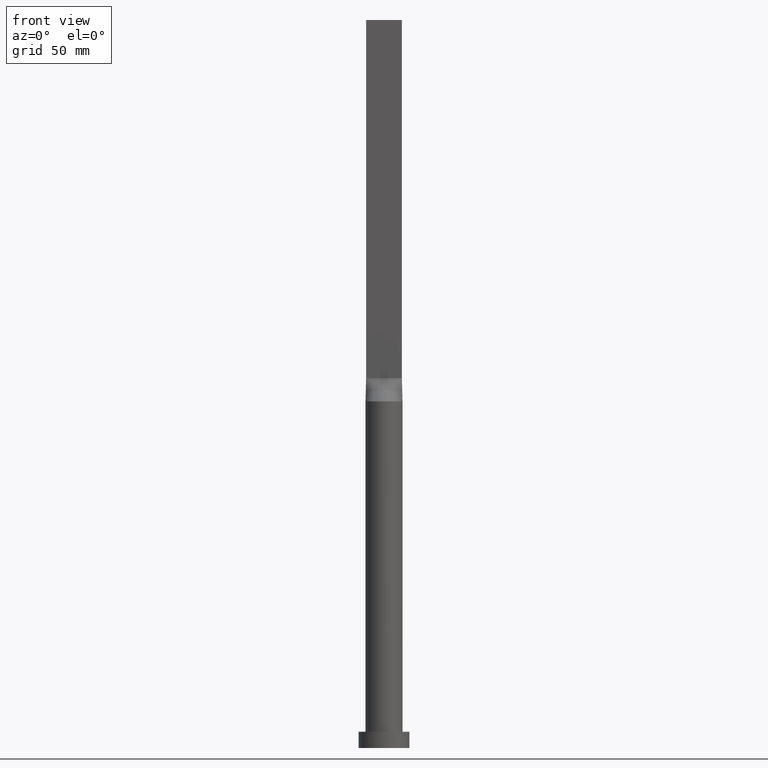
[diagram: clean part render]
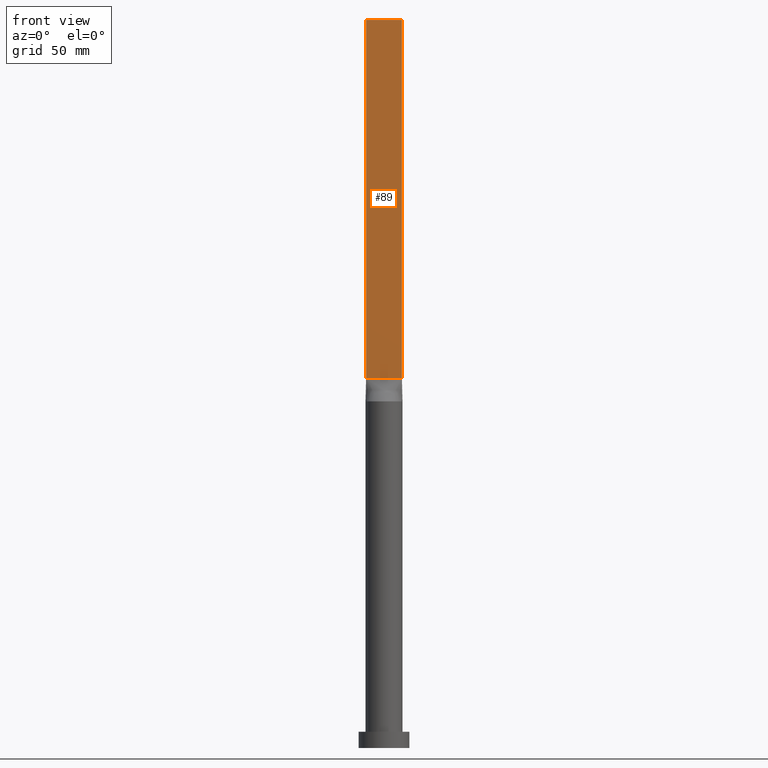
[diagram: same view with one face highlighted and labeled with its STEP entity id]
A machine part, front view. The second image highlights one B-rep face of the part: STEP entity #89.
In plain terms, the highlighted planar face has unit normal (0, 1, -0).
Its self-contained STEP definition (entity closure, byte-faithful):
#1 = EDGE_CURVE ( 'NONE', #638, #161, #126, .T. ) ;
#13 = EDGE_CURVE ( 'NONE', #48, #161, #282, .T. ) ;
#15 = VECTOR ( 'NONE', #130, 1000.000000000000000 ) ;
#22 = ORIENTED_EDGE ( 'NONE', *, *, #1, .T. ) ;
#34 = LINE ( 'NONE', #218, #482 ) ;
#43 = CARTESIAN_POINT ( 'NONE',  ( -7.750000000000000000, -1.249999999999998890, 315.0000000000000000 ) ) ;
#48 = VERTEX_POINT ( 'NONE', #185 ) ;
#59 = VECTOR ( 'NONE', #384, 1000.000000000000000 ) ;
#89 = ADVANCED_FACE ( 'NONE', ( #629 ), #297, .F. ) ;
#126 = LINE ( 'NONE', #495, #449 ) ;
#130 = DIRECTION ( 'NONE',  ( -0.000000000000000000, -0.000000000000000000, -1.000000000000000000 ) ) ;
#161 = VERTEX_POINT ( 'NONE', #438 ) ;
#182 = ORIENTED_EDGE ( 'NONE', *, *, #444, .F. ) ;
#185 = CARTESIAN_POINT ( 'NONE',  ( 7.750000000000000000, -1.249999999999999778, 315.0000000000000000 ) ) ;
#218 = CARTESIAN_POINT ( 'NONE',  ( -7.750000000000000000, -1.249999999999998890, 315.0000000000000000 ) ) ;
#246 = CARTESIAN_POINT ( 'NONE',  ( -7.750000000000000000, -1.249999999999998890, 160.0000000000000000 ) ) ;
#282 = LINE ( 'NONE', #387, #59 ) ;
#297 = PLANE ( 'NONE',  #470 ) ;
#374 = EDGE_LOOP ( 'NONE', ( #22, #618, #182, #380 ) ) ;
#380 = ORIENTED_EDGE ( 'NONE', *, *, #559, .T. ) ;
#384 = DIRECTION ( 'NONE',  ( -0.000000000000000000, -0.000000000000000000, -1.000000000000000000 ) ) ;
#386 = DIRECTION ( 'NONE',  ( 1.000000000000000000, -5.595882180570345426E-17, 0.000000000000000000 ) ) ;
#387 = CARTESIAN_POINT ( 'NONE',  ( 7.750000000000000000, -1.249999999999999778, 315.0000000000000000 ) ) ;
#388 = CARTESIAN_POINT ( 'NONE',  ( -7.750000000000000000, -1.249999999999998890, 315.0000000000000000 ) ) ;
#391 = DIRECTION ( 'NONE',  ( 5.595882180570345426E-17, 1.000000000000000000, -0.000000000000000000 ) ) ;
#400 = CARTESIAN_POINT ( 'NONE',  ( -7.750000000000000000, -1.249999999999998890, 315.0000000000000000 ) ) ;
#438 = CARTESIAN_POINT ( 'NONE',  ( 7.750000000000000000, -1.249999999999999778, 160.0000000000000000 ) ) ;
#444 = EDGE_CURVE ( 'NONE', #529, #48, #34, .T. ) ;
#449 = VECTOR ( 'NONE', #542, 1000.000000000000000 ) ;
#470 = AXIS2_PLACEMENT_3D ( 'NONE', #43, #391, #501 ) ;
#482 = VECTOR ( 'NONE', #386, 1000.000000000000000 ) ;
#495 = CARTESIAN_POINT ( 'NONE',  ( -7.750000000000000000, -1.249999999999998890, 160.0000000000000000 ) ) ;
#501 = DIRECTION ( 'NONE',  ( -1.000000000000000000, 5.595882180570345426E-17, 0.000000000000000000 ) ) ;
#529 = VERTEX_POINT ( 'NONE', #400 ) ;
#542 = DIRECTION ( 'NONE',  ( 1.000000000000000000, -5.595882180570345426E-17, 0.000000000000000000 ) ) ;
#559 = EDGE_CURVE ( 'NONE', #529, #638, #641, .T. ) ;
#618 = ORIENTED_EDGE ( 'NONE', *, *, #13, .F. ) ;
#629 = FACE_OUTER_BOUND ( 'NONE', #374, .T. ) ;
#638 = VERTEX_POINT ( 'NONE', #246 ) ;
#641 = LINE ( 'NONE', #388, #15 ) ;